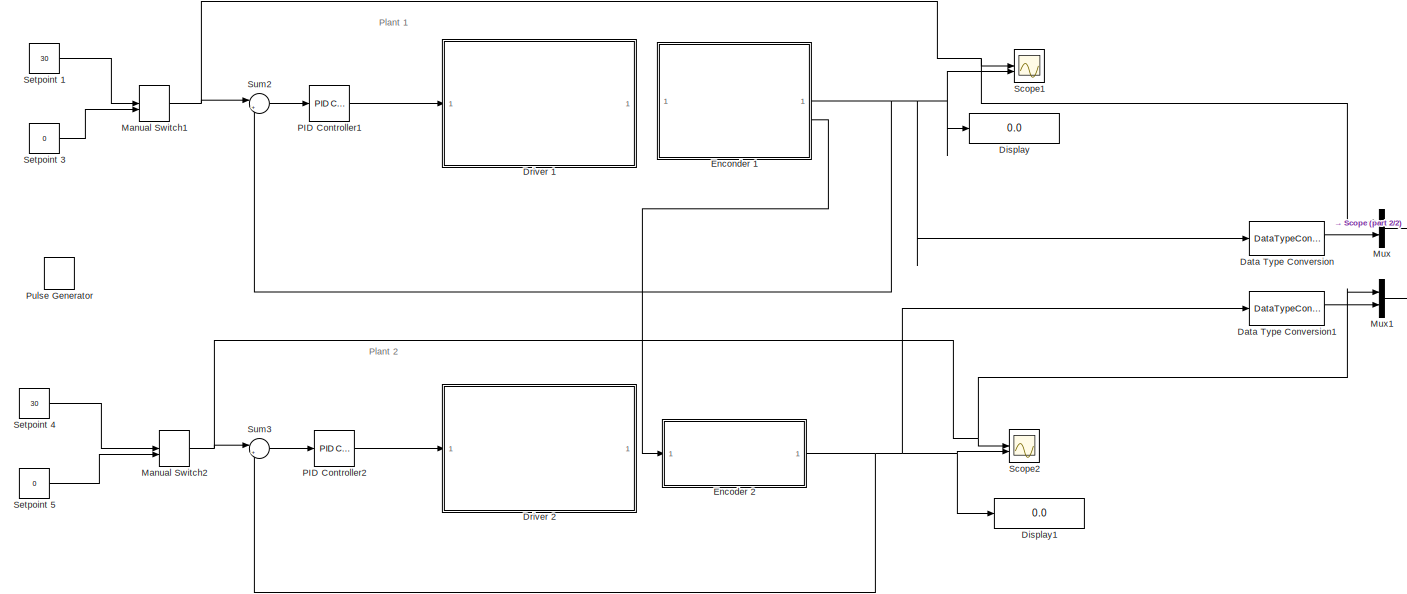
[diagram: root canvas - part 1/2, most of the canvas]
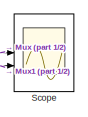
[diagram: root canvas - part 2/2, middle right region]
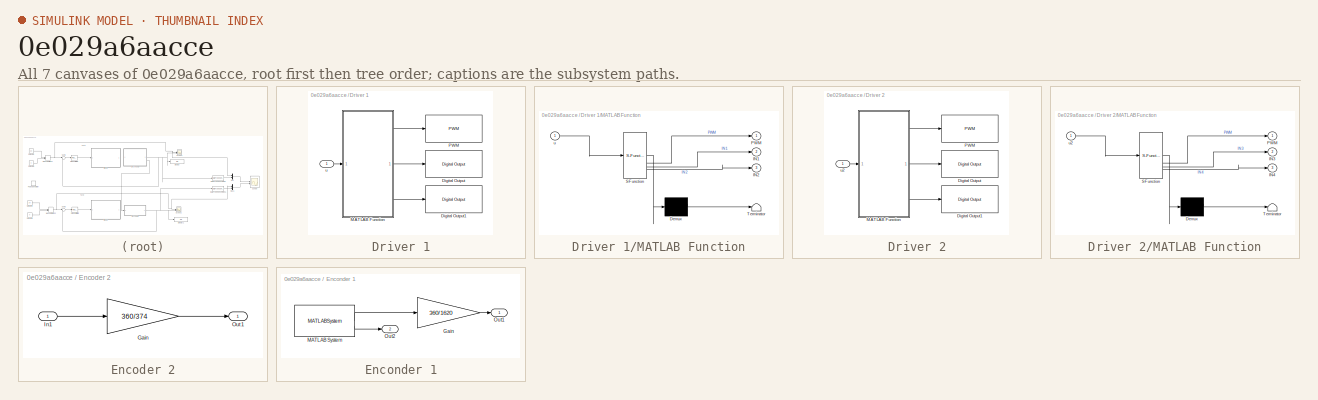
[diagram: thumbnail index - all 7 canvases of the model, root first then tree order]
MODEL slx_0e029a6aacce
KIND model
CONFIG AbsTol = auto
CONFIG EnableMultiTasking = on
CONFIG FixedStep = auto
CONFIG MaxStep = auto
CONFIG MinStep = auto
CONFIG RelTol = 1e-3
CONFIG SampleTimeConstraint = Unconstrained
CONFIG SolverName = ode45
CONFIG StartTime = 0.0
CONFIG StopTime = 10.0
BLOCK [DataTypeConversion] Data Type Conversion
  OutDataTypeStr = double
  RndMeth = Floor
  SaturateOnIntegerOverflow = off
BLOCK [DataTypeConversion] Data Type Conversion1
  OutDataTypeStr = double
  RndMeth = Floor
  SaturateOnIntegerOverflow = off
BLOCK [Display] Display
  Decimation = 1
BLOCK [Display] Display1
  Decimation = 1
BLOCK [SubSystem] Driver 1
BLOCK [Reference] Driver 1/Digital Output  REF=arduinolib/Digital Output
  SourceBlock = arduinolib/Digital Output
  SourceType = Arduino Digital Output
BLOCK [Reference] Driver 1/Digital Output1  REF=arduinolib/Digital Output
  SourceBlock = arduinolib/Digital Output
  SourceType = Arduino Digital Output
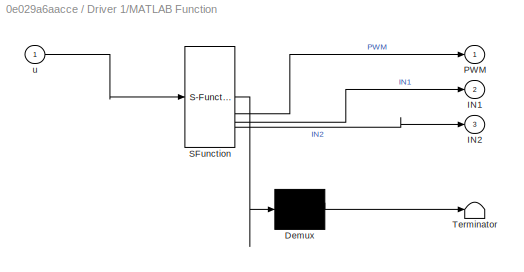
BLOCK [SubSystem] Driver 1/MATLAB Function
  ErrorFcn = Stateflow.Translate.translate
  PermitHierarchicalResolution = ExplicitOnly
  SFBlockType = MATLAB Function
  TreatAsAtomicUnit = on
BLOCK [Demux] Driver 1/MATLAB Function/ Demux 
  Outputs = 1
BLOCK [S-Function] Driver 1/MATLAB Function/ SFunction 
  EnableBusSupport = on
  FunctionName = sf_sfun
  PortCounts = [1 4]
  SFcnIsStateOwnerBlock = off
  SFunctionDeploymentMode = off
  Tag = Stateflow S-Function 2
BLOCK [Terminator] Driver 1/MATLAB Function/ Terminator 
BLOCK [Outport] Driver 1/MATLAB Function/IN1
  Port = 2
BLOCK [Outport] Driver 1/MATLAB Function/IN2
  Port = 3
BLOCK [Outport] Driver 1/MATLAB Function/PWM
BLOCK [Inport] Driver 1/MATLAB Function/u
BLOCK [Reference] Driver 1/PWM  REF=arduinolib/PWM
  SourceBlock = arduinolib/PWM
  SourceType = Arduino PWM
BLOCK [Inport] Driver 1/u
BLOCK [SubSystem] Driver 2
BLOCK [Reference] Driver 2/Digital Output  REF=arduinolib/Digital Output
  SourceBlock = arduinolib/Digital Output
  SourceType = Arduino Digital Output
BLOCK [Reference] Driver 2/Digital Output1  REF=arduinolib/Digital Output
  SourceBlock = arduinolib/Digital Output
  SourceType = Arduino Digital Output
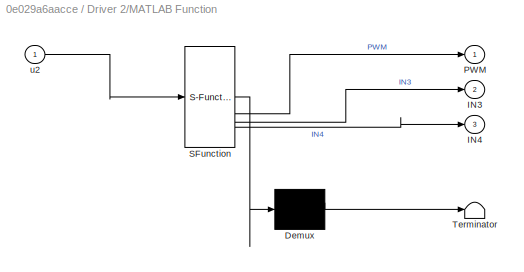
BLOCK [SubSystem] Driver 2/MATLAB Function
  ErrorFcn = Stateflow.Translate.translate
  PermitHierarchicalResolution = ExplicitOnly
  SFBlockType = MATLAB Function
  TreatAsAtomicUnit = on
BLOCK [Demux] Driver 2/MATLAB Function/ Demux 
  Outputs = 1
BLOCK [S-Function] Driver 2/MATLAB Function/ SFunction 
  EnableBusSupport = on
  FunctionName = sf_sfun
  PortCounts = [1 4]
  SFcnIsStateOwnerBlock = off
  SFunctionDeploymentMode = off
  Tag = Stateflow S-Function 1
BLOCK [Terminator] Driver 2/MATLAB Function/ Terminator 
BLOCK [Outport] Driver 2/MATLAB Function/IN3
  Port = 2
BLOCK [Outport] Driver 2/MATLAB Function/IN4
  Port = 3
BLOCK [Outport] Driver 2/MATLAB Function/PWM
BLOCK [Inport] Driver 2/MATLAB Function/u2
BLOCK [Reference] Driver 2/PWM  REF=arduinolib/PWM
  SourceBlock = arduinolib/PWM
  SourceType = Arduino PWM
BLOCK [Inport] Driver 2/u2
BLOCK [SubSystem] Encoder 2
BLOCK [Gain] Encoder 2/Gain
  Gain = 360/374
BLOCK [Inport] Encoder 2/In1
BLOCK [Outport] Encoder 2/Out1
BLOCK [SubSystem] Enconder 1
BLOCK [Gain] Enconder 1/Gain
  Gain = 360/1620
BLOCK [MATLABSystem] Enconder 1/MATLAB System
  Encoder1 = 0
  Encoder2 = 1
  MaskDisplay = disp('Dual Encoder');\nport_label('output',1,'y1');\nport_label('output',2,'y2');
  MaskType = Encoder_arduino
  PinA1 = 2
  PinA2 = 21
  PinB1 = 3
  PinB2 = 20
  SampleTime = 0.01
  System = Encoder_arduino
BLOCK [Outport] Enconder 1/Out1
BLOCK [Outport] Enconder 1/Out2
  Port = 2
BLOCK [ManualSwitch] Manual Switch1
  CurrentSetting = 0
BLOCK [ManualSwitch] Manual Switch2
  CurrentSetting = 0
BLOCK [Mux] Mux
  DisplayOption = bar
  Inputs = 2
BLOCK [Mux] Mux1
  DisplayOption = bar
  Inputs = 2
BLOCK [Reference] PID Controller1  REF=slpidlib/PID Controller
  LibrarySourceBlock = simulink/Continuous/PID Controller
  SourceBlock = slpidlib/PID Controller
  SourceType = PID 1dof
BLOCK [Reference] PID Controller2  REF=slpidlib/PID Controller
  LibrarySourceBlock = simulink/Continuous/PID Controller
  SourceBlock = slpidlib/PID Controller
  SourceType = PID 1dof
BLOCK [DiscretePulseGenerator] Pulse Generator
  Amplitude = 30
  Commented = on
  Period = 5
  PulseType = Time based
  PulseWidth = 50
BLOCK [Scope] Scope
  Floating = off
  NumInputPorts = 2
  ScopeSpecificationString = Simulink.scopes.TimeScopeBlockCfg('CurrentConfiguration', extmgr.ConfigurationSet(extmgr.Configuration('Core','General UI',true),extmgr.Configuration('Core','Source UI',true),extmgr.Configuration('Sources','WiredSimulink',true,'DataLoggingVariableName','ScopeData1'),extmgr.Configuration('Visuals','Time Domain',true,'SerializedDisplays',{struct('MinYLimReal','-13.91667','MaxYLimReal','114.13889','Y...<+2731ch>
BLOCK [Scope] Scope1
  Floating = off
  NumInputPorts = 2
  ScopeSpecificationString = Simulink.scopes.TimeScopeBlockCfg('CurrentConfiguration', extmgr.ConfigurationSet(extmgr.Configuration('Core','General UI',true,'FigureColor',[0 0 0]),extmgr.Configuration('Core','Source UI',true),extmgr.Configuration('Sources','WiredSimulink',true,'DataLoggingVariableName','ScopeData1'),extmgr.Configuration('Visuals','Time Domain',true,'SerializedDisplays',{struct('MinYLimReal','-12.5','MaxYLimRe...<+1809ch>
BLOCK [Scope] Scope2
  Floating = off
  NumInputPorts = 2
  ScopeSpecificationString = Simulink.scopes.TimeScopeBlockCfg('CurrentConfiguration', extmgr.ConfigurationSet(extmgr.Configuration('Core','General UI',true),extmgr.Configuration('Core','Source UI',true),extmgr.Configuration('Sources','WiredSimulink',true),extmgr.Configuration('Visuals','Time Domain',true,'SerializedDisplays',{struct('MinYLimReal','-12.5','MaxYLimReal','112.5','YLabelReal','','MinYLimMag','0.00000','MaxYLimMa...<+1741ch>
BLOCK [Constant] Setpoint 1
  Value = 30
BLOCK [Constant] Setpoint 3
  Value = 0
BLOCK [Constant] Setpoint 4
  Value = 30
BLOCK [Constant] Setpoint 5
  Value = 0
BLOCK [Sum] Sum2
  Inputs = |+-
BLOCK [Sum] Sum3
  Inputs = |+-
ANNOTATION (root): Plant 1
ANNOTATION (root): Plant 2
LINE Data Type Conversion1:1 -> Mux1:2
LINE Data Type Conversion:1 -> Mux:2
LINE Driver 1/MATLAB Function:1 -> Driver 1/PWM:1
LINE Driver 1/MATLAB Function:2 -> Driver 1/Digital Output:1
LINE Driver 1/MATLAB Function:3 -> Driver 1/Digital Output1:1
LINE Driver 1/u:1 -> Driver 1/MATLAB Function:1
LINE Driver 2/MATLAB Function:1 -> Driver 2/PWM:1
LINE Driver 2/MATLAB Function:2 -> Driver 2/Digital Output:1
LINE Driver 2/MATLAB Function:3 -> Driver 2/Digital Output1:1
LINE Driver 2/u2:1 -> Driver 2/MATLAB Function:1
LINE Encoder 2/Gain:1 -> Encoder 2/Out1:1
LINE Encoder 2/In1:1 -> Encoder 2/Gain:1
NET Encoder 2:1 -> Data Type Conversion1:1, Display1:1, Scope2:2, Sum3:2
LINE Enconder 1/Gain:1 -> Enconder 1/Out1:1
LINE Enconder 1/MATLAB System:1 -> Enconder 1/Gain:1
LINE Enconder 1/MATLAB System:2 -> Enconder 1/Out2:1
NET Enconder 1:1 -> Data Type Conversion:1, Display:1, Scope1:2, Sum2:2
LINE Enconder 1:2 -> Encoder 2:1
NET Manual Switch1:1 -> Mux:1, Scope1:1, Sum2:1
NET Manual Switch2:1 -> Mux1:1, Scope2:1, Sum3:1
LINE Mux1:1 -> Scope:2
LINE Mux:1 -> Scope:1
LINE PID Controller1:1 -> Driver 1:1
LINE PID Controller2:1 -> Driver 2:1
LINE Setpoint 1:1 -> Manual Switch1:1
LINE Setpoint 3:1 -> Manual Switch1:2
LINE Setpoint 4:1 -> Manual Switch2:1
LINE Setpoint 5:1 -> Manual Switch2:2
LINE Sum2:1 -> PID Controller1:1
LINE Sum3:1 -> PID Controller2:1
note: NET lines group one-source signal fan-out (src -> all destinations, sorted); 1:1 wires keep LINE
CHART Driver 1/MATLAB Function states=1 transitions=1
  STATE_LABEL 'eML_blk_kernel()'
  STATE_LABEL 'SCRIPT:\nfunction [PWM,IN1,IN2] = fcn(u)\n\nPWM = abs(u);\nif u>0 \n    IN1 = 1; IN2 =0;\nelseif u<0\n    IN1 = 0; IN2=1;\nelse\n    IN1=0; IN2=0;\nend\n'
CHART Driver 2/MATLAB Function states=1 transitions=1
  STATE_LABEL 'eML_blk_kernel()'
  STATE_LABEL 'SCRIPT:\nfunction [PWM,IN3,IN4] = fcn(u2)\n\nPWM = abs(u2);\nif u2>0 \n    IN3 = 1; IN4 =0;\nelseif u2<0\n    IN3 = 0; IN4=1;\nelse\n    IN3=0; IN4=0;\nend\n'
CHART  states=0 transitions=0
CHART  states=0 transitions=0
